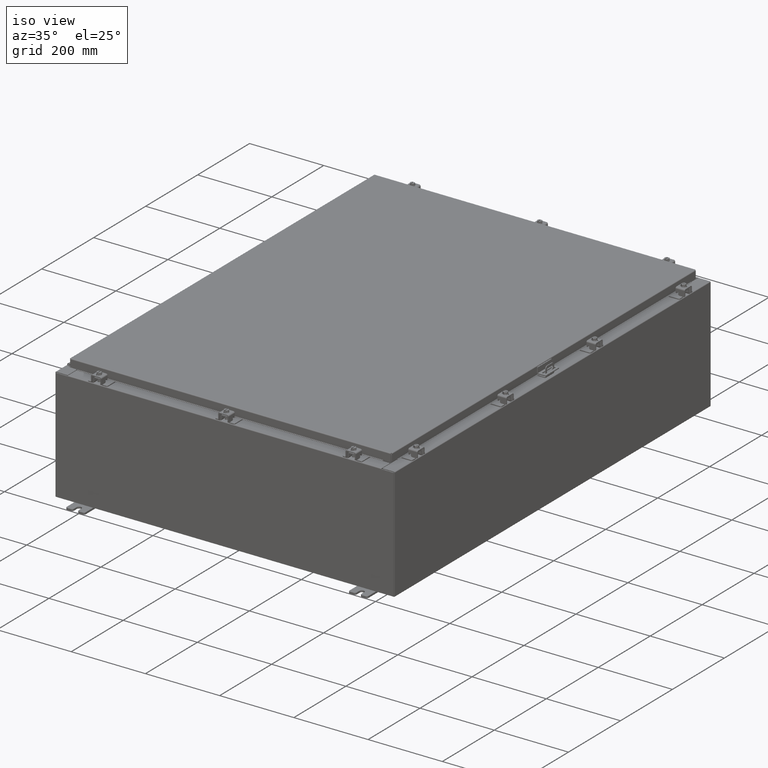
[diagram: clean part render]
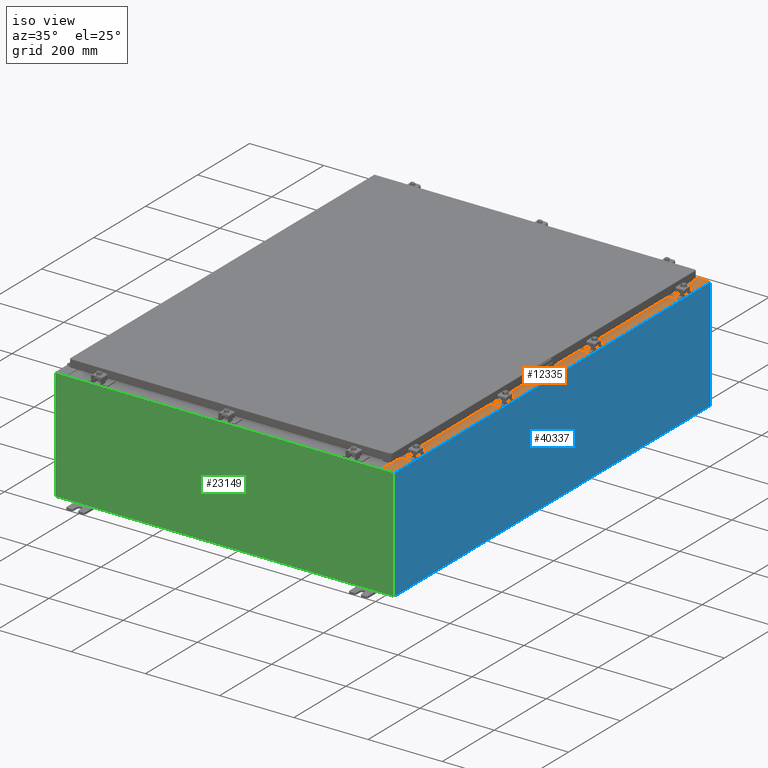
[diagram: same view with three faces highlighted in distinct colors, each labeled with its STEP entity id]
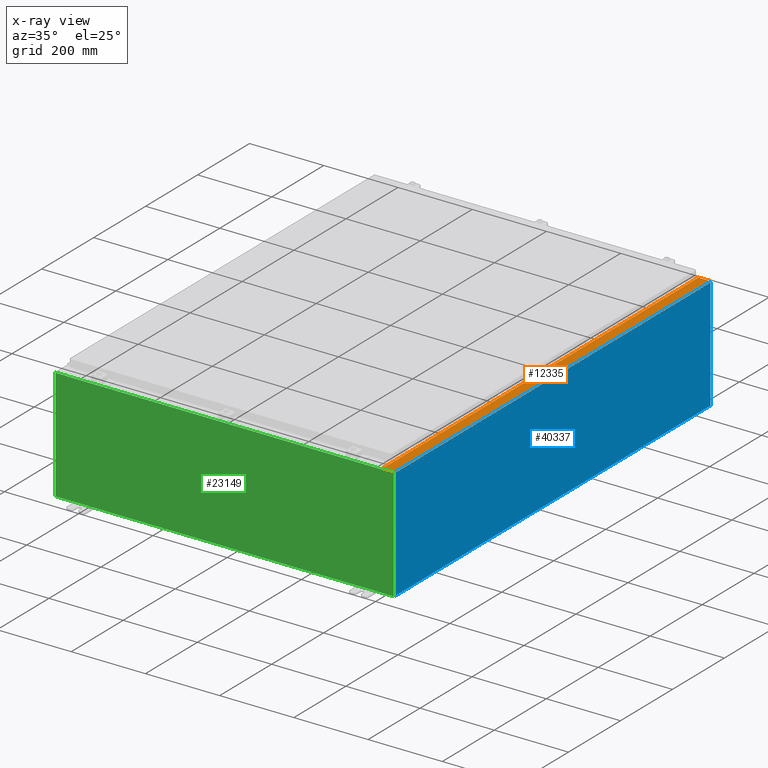
[diagram: x-ray of the same camera — body ghosted, the three highlighted faces saturated]
A machine part, iso view with three faces highlighted in distinct colors.
The next image is the same camera in x-ray (body ghosted, the three faces saturated) — at least one of them is partly hidden behind the body in this view.
Their STEP definitions:

[orange] entity #12335 — the highlighted planar face has unit normal (-0, 0, -1).
#681 = ORIENTED_EDGE ( 'NONE', *, *, #7957, .F. ) ;
#768 = EDGE_CURVE ( 'NONE', #19387, #36393, #44924, .T. ) ;
#1273 = CARTESIAN_POINT ( 'NONE',  ( 16.75005000000003700, -22.59374999999998900, 11.92530000000000900 ) ) ;
#2378 = DIRECTION ( 'NONE',  ( 1.000000000000000000, 0.0000000000000000000, -7.132762385546384700E-015 ) ) ;
#2498 = DIRECTION ( 'NONE',  ( 1.000000000000000000, 0.0000000000000000000, 4.340572780400098900E-014 ) ) ;
#2682 = AXIS2_PLACEMENT_3D ( 'NONE', #3676, #7745, #37019 ) ;
#2827 = EDGE_CURVE ( 'NONE', #10588, #2937, #45321, .T. ) ;
#2937 = VERTEX_POINT ( 'NONE', #34646 ) ;
#3048 = VECTOR ( 'NONE', #2498, 39.37007874015748100 ) ;
#3154 = CARTESIAN_POINT ( 'NONE',  ( 16.75005000000003700, 22.61242499999997000, 11.92530000000001200 ) ) ;
#3242 = VECTOR ( 'NONE', #7252, 39.37007874015748100 ) ;
#3535 = EDGE_CURVE ( 'NONE', #53874, #19387, #4818, .T. ) ;
#3676 = CARTESIAN_POINT ( 'NONE',  ( 8.532114493236880700E-014, 0.0000000000000000000, 11.92530000000013000 ) ) ;
#4576 = CARTESIAN_POINT ( 'NONE',  ( 16.75005000000003700, 22.59374999999997200, 11.92530000000000900 ) ) ;
#4818 = CIRCLE ( 'NONE', #44049, 0.01867499999999949400 ) ;
#5230 = CARTESIAN_POINT ( 'NONE',  ( 16.71270000000003700, -22.59374999999998900, 11.92530000000001200 ) ) ;
#5369 = CARTESIAN_POINT ( 'NONE',  ( 16.69970000000003900, -22.63109999999998600, 11.92530000000000900 ) ) ;
#6599 = CARTESIAN_POINT ( 'NONE',  ( 16.69970000000003900, -22.63109999999998600, 11.92530000000000900 ) ) ;
#7117 = CIRCLE ( 'NONE', #32744, 0.01867499999999949400 ) ;
#7176 = DIRECTION ( 'NONE',  ( -1.000000000000000000, 0.0000000000000000000, 7.132762385546384700E-015 ) ) ;
#7238 = DIRECTION ( 'NONE',  ( 1.000000000000000000, 0.0000000000000000000, 0.0000000000000000000 ) ) ;
#7252 = DIRECTION ( 'NONE',  ( -1.000000000000000000, 0.0000000000000000000, 0.0000000000000000000 ) ) ;
#7648 = VERTEX_POINT ( 'NONE', #5369 ) ;
#7660 = EDGE_CURVE ( 'NONE', #10588, #15040, #29741, .T. ) ;
#7745 = DIRECTION ( 'NONE',  ( -7.132762385546384700E-015, 0.0000000000000000000, -1.000000000000000000 ) ) ;
#7957 = EDGE_CURVE ( 'NONE', #7648, #53874, #13960, .T. ) ;
#8447 = CARTESIAN_POINT ( 'NONE',  ( 17.91230000000003700, 23.92529999999998600, 11.92530000000000400 ) ) ;
#10185 = ORIENTED_EDGE ( 'NONE', *, *, #50965, .T. ) ;
#10588 = VERTEX_POINT ( 'NONE', #8447 ) ;
#10981 = VECTOR ( 'NONE', #44513, 39.37007874015748100 ) ;
#11432 = ORIENTED_EDGE ( 'NONE', *, *, #12121, .F. ) ;
#12121 = EDGE_CURVE ( 'NONE', #36393, #41365, #46237, .T. ) ;
#12335 = ADVANCED_FACE ( 'NONE', ( #22038 ), #41014, .F. ) ;
#12544 = LINE ( 'NONE', #38284, #21123 ) ;
#12665 = CARTESIAN_POINT ( 'NONE',  ( 16.69970000000003900, 0.0000000000000000000, 11.92530000000000900 ) ) ;
#13960 = LINE ( 'NONE', #6599, #3048 ) ;
#14648 = CARTESIAN_POINT ( 'NONE',  ( 16.71270000000003700, -22.59374999999998900, 11.92530000000001200 ) ) ;
#14981 = ORIENTED_EDGE ( 'NONE', *, *, #22937, .T. ) ;
#15040 = VERTEX_POINT ( 'NONE', #33416 ) ;
#17167 = ORIENTED_EDGE ( 'NONE', *, *, #7660, .T. ) ;
#17382 = DIRECTION ( 'NONE',  ( 0.0000000000000000000, -1.000000000000000000, 0.0000000000000000000 ) ) ;
#17610 = DIRECTION ( 'NONE',  ( -0.0000000000000000000, -1.000000000000000000, -0.0000000000000000000 ) ) ;
#18714 = DIRECTION ( 'NONE',  ( -0.0000000000000000000, 1.000000000000000000, -0.0000000000000000000 ) ) ;
#19094 = DIRECTION ( 'NONE',  ( -1.000000000000000000, 0.0000000000000000000, -4.340572780400098900E-014 ) ) ;
#19387 = VERTEX_POINT ( 'NONE', #1273 ) ;
#20677 = VECTOR ( 'NONE', #41990, 39.37007874015748100 ) ;
#21123 = VECTOR ( 'NONE', #17382, 39.37007874015748100 ) ;
#21296 = ORIENTED_EDGE ( 'NONE', *, *, #2827, .F. ) ;
#21365 = CARTESIAN_POINT ( 'NONE',  ( 8.532114493236880700E-014, 23.92529999999998600, 11.92530000000013000 ) ) ;
#21407 = VECTOR ( 'NONE', #18714, 39.37007874015748100 ) ;
#21672 = ORIENTED_EDGE ( 'NONE', *, *, #768, .F. ) ;
#21780 = EDGE_CURVE ( 'NONE', #41365, #42031, #44392, .T. ) ;
#22038 = FACE_OUTER_BOUND ( 'NONE', #24150, .T. ) ;
#22342 = EDGE_CURVE ( 'NONE', #42031, #38746, #7117, .T. ) ;
#22682 = VECTOR ( 'NONE', #2378, 39.37007874015748100 ) ;
#22921 = CARTESIAN_POINT ( 'NONE',  ( 17.91230000000003700, -23.92529999999998900, 11.92530000000000400 ) ) ;
#22937 = EDGE_CURVE ( 'NONE', #50401, #2937, #44914, .T. ) ;
#23107 = VECTOR ( 'NONE', #17610, 39.37007874015748100 ) ;
#24150 = EDGE_LOOP ( 'NONE', ( #681, #10185, #14981, #21296, #17167, #43777, #33671, #38141, #42499, #11432, #21672, #47231 ) ) ;
#27495 = CARTESIAN_POINT ( 'NONE',  ( 16.75005000000003700, 22.63109999999996800, 11.92530000000001200 ) ) ;
#29380 = EDGE_CURVE ( 'NONE', #38746, #37220, #53820, .T. ) ;
#29741 = LINE ( 'NONE', #21365, #40868 ) ;
#31415 = CARTESIAN_POINT ( 'NONE',  ( 16.69970000000003900, 22.63109999999996800, 11.92530000000000900 ) ) ;
#32305 = DIRECTION ( 'NONE',  ( 7.132762385546384700E-015, 0.0000000000000000000, 1.000000000000000000 ) ) ;
#32744 = AXIS2_PLACEMENT_3D ( 'NONE', #3154, #32305, #7238 ) ;
#33416 = CARTESIAN_POINT ( 'NONE',  ( 16.69970000000003900, 23.92529999999998200, 11.92530000000000900 ) ) ;
#33422 = CARTESIAN_POINT ( 'NONE',  ( 16.69970000000003900, -23.92529999999998900, 11.92530000000000900 ) ) ;
#33671 = ORIENTED_EDGE ( 'NONE', *, *, #29380, .F. ) ;
#34646 = CARTESIAN_POINT ( 'NONE',  ( 17.91230000000003700, -23.92529999999998900, 11.92530000000000400 ) ) ;
#36393 = VERTEX_POINT ( 'NONE', #5230 ) ;
#36886 = EDGE_CURVE ( 'NONE', #15040, #37220, #52721, .T. ) ;
#37019 = DIRECTION ( 'NONE',  ( -1.000000000000000000, 0.0000000000000000000, 7.132762385546384700E-015 ) ) ;
#37220 = VERTEX_POINT ( 'NONE', #31415 ) ;
#37644 = CARTESIAN_POINT ( 'NONE',  ( 16.71270000000003700, 22.59374999999997200, 11.92530000000001200 ) ) ;
#37895 = DIRECTION ( 'NONE',  ( 1.000000000000000000, 0.0000000000000000000, 0.0000000000000000000 ) ) ;
#38086 = CARTESIAN_POINT ( 'NONE',  ( 16.75005000000003700, -22.61242499999998800, 11.92530000000001200 ) ) ;
#38141 = ORIENTED_EDGE ( 'NONE', *, *, #22342, .F. ) ;
#38284 = CARTESIAN_POINT ( 'NONE',  ( 16.69970000000003900, 0.0000000000000000000, 11.92530000000000900 ) ) ;
#38746 = VERTEX_POINT ( 'NONE', #53825 ) ;
#40339 = CARTESIAN_POINT ( 'NONE',  ( 16.71270000000003700, 22.59374999999997200, 11.92530000000001200 ) ) ;
#40868 = VECTOR ( 'NONE', #7176, 39.37007874015748100 ) ;
#41014 = PLANE ( 'NONE',  #2682 ) ;
#41188 = CARTESIAN_POINT ( 'NONE',  ( 16.75005000000003700, -22.63109999999998600, 11.92530000000000900 ) ) ;
#41365 = VERTEX_POINT ( 'NONE', #37644 ) ;
#41907 = DIRECTION ( 'NONE',  ( 7.132762385546384700E-015, 0.0000000000000000000, 1.000000000000000000 ) ) ;
#41990 = DIRECTION ( 'NONE',  ( 0.0000000000000000000, -1.000000000000000000, 0.0000000000000000000 ) ) ;
#42031 = VERTEX_POINT ( 'NONE', #4576 ) ;
#42499 = ORIENTED_EDGE ( 'NONE', *, *, #21780, .F. ) ;
#42737 = VECTOR ( 'NONE', #19094, 39.37007874015748100 ) ;
#43777 = ORIENTED_EDGE ( 'NONE', *, *, #36886, .T. ) ;
#44049 = AXIS2_PLACEMENT_3D ( 'NONE', #38086, #41907, #37895 ) ;
#44392 = LINE ( 'NONE', #40339, #10981 ) ;
#44513 = DIRECTION ( 'NONE',  ( 1.000000000000000000, 0.0000000000000000000, 0.0000000000000000000 ) ) ;
#44914 = LINE ( 'NONE', #52626, #22682 ) ;
#44924 = LINE ( 'NONE', #51620, #3242 ) ;
#45321 = LINE ( 'NONE', #22921, #23107 ) ;
#46237 = LINE ( 'NONE', #14648, #21407 ) ;
#47231 = ORIENTED_EDGE ( 'NONE', *, *, #3535, .F. ) ;
#50401 = VERTEX_POINT ( 'NONE', #33422 ) ;
#50965 = EDGE_CURVE ( 'NONE', #7648, #50401, #12544, .T. ) ;
#51620 = CARTESIAN_POINT ( 'NONE',  ( 16.75005000000003700, -22.59374999999998900, 11.92530000000001200 ) ) ;
#52626 = CARTESIAN_POINT ( 'NONE',  ( 8.532114493236880700E-014, -23.92529999999998900, 11.92530000000013000 ) ) ;
#52721 = LINE ( 'NONE', #12665, #20677 ) ;
#53820 = LINE ( 'NONE', #27495, #42737 ) ;
#53825 = CARTESIAN_POINT ( 'NONE',  ( 16.75005000000003700, 22.63109999999996800, 11.92530000000000900 ) ) ;
#53874 = VERTEX_POINT ( 'NONE', #41188 ) ;

[blue] entity #40337 — the highlighted planar face has unit normal (-1, 0, 0).
#1287 = LINE ( 'NONE', #51251, #44277 ) ;
#2486 = ORIENTED_EDGE ( 'NONE', *, *, #48757, .T. ) ;
#3420 = VECTOR ( 'NONE', #30080, 39.37007874015748100 ) ;
#4286 = DIRECTION ( 'NONE',  ( -1.590339826456887700E-031, -1.000000000000000000, -4.567295697298285000E-017 ) ) ;
#5449 = PLANE ( 'NONE',  #35116 ) ;
#5820 = EDGE_CURVE ( 'NONE', #42083, #38747, #51583, .T. ) ;
#6518 = FACE_OUTER_BOUND ( 'NONE', #53585, .T. ) ;
#7224 = CARTESIAN_POINT ( 'NONE',  ( 17.99999999999999600, -23.92529999999998900, 0.01299999999999984700 ) ) ;
#9123 = VERTEX_POINT ( 'NONE', #39133 ) ;
#10160 = DIRECTION ( 'NONE',  ( -3.482016343714355500E-015, 0.0000000000000000000, -1.000000000000000000 ) ) ;
#14487 = VECTOR ( 'NONE', #10160, 39.37007874015748100 ) ;
#14696 = EDGE_CURVE ( 'NONE', #9123, #38747, #25649, .T. ) ;
#15645 = LINE ( 'NONE', #50853, #3420 ) ;
#18997 = CARTESIAN_POINT ( 'NONE',  ( 18.00000000000003900, 23.92529999999998600, 11.83760000000000200 ) ) ;
#22148 = DIRECTION ( 'NONE',  ( 3.482016343714355100E-015, 0.0000000000000000000, 1.000000000000000000 ) ) ;
#25649 = LINE ( 'NONE', #26798, #14487 ) ;
#26235 = DIRECTION ( 'NONE',  ( 3.482016343714355500E-015, 0.0000000000000000000, 1.000000000000000000 ) ) ;
#26798 = CARTESIAN_POINT ( 'NONE',  ( 17.99999999999999600, -23.92529999999998900, -6.293710784286996200E-014 ) ) ;
#28484 = ORIENTED_EDGE ( 'NONE', *, *, #14696, .T. ) ;
#28785 = CARTESIAN_POINT ( 'NONE',  ( 17.99999999999999600, -23.92529999999998900, 0.01299999999999897800 ) ) ;
#29349 = VECTOR ( 'NONE', #4286, 39.37007874015748100 ) ;
#30080 = DIRECTION ( 'NONE',  ( -0.0000000000000000000, -1.000000000000000000, -0.0000000000000000000 ) ) ;
#35116 = AXIS2_PLACEMENT_3D ( 'NONE', #38833, #47191, #22148 ) ;
#38747 = VERTEX_POINT ( 'NONE', #28785 ) ;
#38833 = CARTESIAN_POINT ( 'NONE',  ( 17.99999999999999600, 0.0000000000000000000, -6.293710784286996200E-014 ) ) ;
#38905 = EDGE_CURVE ( 'NONE', #46503, #9123, #15645, .T. ) ;
#39133 = CARTESIAN_POINT ( 'NONE',  ( 18.00000000000003900, -23.92529999999998900, 11.83760000000000200 ) ) ;
#40337 = ADVANCED_FACE ( 'NONE', ( #6518 ), #5449, .F. ) ;
#42083 = VERTEX_POINT ( 'NONE', #50640 ) ;
#44277 = VECTOR ( 'NONE', #26235, 39.37007874015748100 ) ;
#46503 = VERTEX_POINT ( 'NONE', #18997 ) ;
#47191 = DIRECTION ( 'NONE',  ( -1.000000000000000000, 0.0000000000000000000, 3.482016343714355100E-015 ) ) ;
#48757 = EDGE_CURVE ( 'NONE', #42083, #46503, #1287, .T. ) ;
#50206 = ORIENTED_EDGE ( 'NONE', *, *, #38905, .T. ) ;
#50581 = ORIENTED_EDGE ( 'NONE', *, *, #5820, .F. ) ;
#50640 = CARTESIAN_POINT ( 'NONE',  ( 17.99999999999999600, 23.92529999999998600, 0.01300000000000203200 ) ) ;
#50853 = CARTESIAN_POINT ( 'NONE',  ( 18.00000000000003900, 23.92529999999998900, 11.83760000000000200 ) ) ;
#51251 = CARTESIAN_POINT ( 'NONE',  ( 17.99999999999999600, 23.92529999999998900, -6.293710784286996200E-014 ) ) ;
#51583 = LINE ( 'NONE', #7224, #29349 ) ;
#53585 = EDGE_LOOP ( 'NONE', ( #50206, #28484, #50581, #2486 ) ) ;

[green] entity #23149 — the highlighted planar face has unit normal (-0, 1, -0).
#19 = CARTESIAN_POINT ( 'NONE',  ( 16.63720000000000400, 0.0000000000000000000, 5.874949999999999200 ) ) ;
#184 = CARTESIAN_POINT ( 'NONE',  ( 16.67455000000000700, 0.0000000000000000000, 5.925300000000000000 ) ) ;
#1390 = DIRECTION ( 'NONE',  ( -0.0000000000000000000, 1.000000000000000000, -0.0000000000000000000 ) ) ;
#1922 = ORIENTED_EDGE ( 'NONE', *, *, #18359, .T. ) ;
#2252 = CARTESIAN_POINT ( 'NONE',  ( -17.92529999999999600, 0.0000000000000000000, 5.925299999999999100 ) ) ;
#3180 = CARTESIAN_POINT ( 'NONE',  ( -16.63720000000000000, 3.756290991288361700E-016, 5.912299999999999200 ) ) ;
#3182 = VECTOR ( 'NONE', #14636, 39.37007874015748100 ) ;
#3197 = ORIENTED_EDGE ( 'NONE', *, *, #41418, .F. ) ;
#3226 = EDGE_LOOP ( 'NONE', ( #6833, #3197, #47145, #8391, #17352, #39538, #22543, #31391, #41320, #36448, #3713, #1922 ) ) ;
#3713 = ORIENTED_EDGE ( 'NONE', *, *, #28431, .T. ) ;
#4812 = DIRECTION ( 'NONE',  ( -0.0000000000000000000, 1.000000000000000000, -0.0000000000000000000 ) ) ;
#5061 = EDGE_CURVE ( 'NONE', #31775, #53614, #36690, .T. ) ;
#5706 = CARTESIAN_POINT ( 'NONE',  ( -17.92529999999999600, 0.0000000000000000000, -5.925300000000000000 ) ) ;
#6796 = CARTESIAN_POINT ( 'NONE',  ( 16.63720000000000400, 0.0000000000000000000, 0.0000000000000000000 ) ) ;
#6833 = ORIENTED_EDGE ( 'NONE', *, *, #49565, .F. ) ;
#7228 = DIRECTION ( 'NONE',  ( -8.681145560799821800E-014, 0.0000000000000000000, -1.000000000000000000 ) ) ;
#7578 = LINE ( 'NONE', #36074, #39617 ) ;
#8207 = CARTESIAN_POINT ( 'NONE',  ( 0.0000000000000000000, 0.0000000000000000000, 0.0000000000000000000 ) ) ;
#8391 = ORIENTED_EDGE ( 'NONE', *, *, #18211, .T. ) ;
#8667 = VECTOR ( 'NONE', #24405, 39.37007874015748100 ) ;
#8924 = VERTEX_POINT ( 'NONE', #184 ) ;
#9575 = LINE ( 'NONE', #19770, #52730 ) ;
#10290 = VERTEX_POINT ( 'NONE', #44329 ) ;
#11135 = VERTEX_POINT ( 'NONE', #19 ) ;
#11726 = CARTESIAN_POINT ( 'NONE',  ( -16.63720000000000000, -0.0000000000000000000, 0.0000000000000000000 ) ) ;
#12128 = CARTESIAN_POINT ( 'NONE',  ( -16.67455000000000000, 0.0000000000000000000, 5.925299999999999100 ) ) ;
#14636 = DIRECTION ( 'NONE',  ( 1.000000000000000000, 0.0000000000000000000, 3.048036009064577000E-017 ) ) ;
#16416 = LINE ( 'NONE', #16941, #48496 ) ;
#16941 = CARTESIAN_POINT ( 'NONE',  ( 17.92530000000000400, 0.0000000000000000000, 5.925300000000000000 ) ) ;
#17352 = ORIENTED_EDGE ( 'NONE', *, *, #47168, .F. ) ;
#17405 = DIRECTION ( 'NONE',  ( -0.0000000000000000000, -0.0000000000000000000, 1.000000000000000000 ) ) ;
#18211 = EDGE_CURVE ( 'NONE', #47811, #34196, #33172, .T. ) ;
#18359 = EDGE_CURVE ( 'NONE', #53926, #21304, #26544, .T. ) ;
#18974 = DIRECTION ( 'NONE',  ( 1.000000000000000000, 0.0000000000000000000, 3.048036009064577000E-017 ) ) ;
#19020 = LINE ( 'NONE', #11726, #8667 ) ;
#19536 = DIRECTION ( 'NONE',  ( 0.0000000000000000000, 0.0000000000000000000, 1.000000000000000000 ) ) ;
#19679 = EDGE_CURVE ( 'NONE', #47811, #10290, #19020, .T. ) ;
#19770 = CARTESIAN_POINT ( 'NONE',  ( 16.67454999999949500, -0.0000000000000000000, -1.447541957108302900E-012 ) ) ;
#19780 = CARTESIAN_POINT ( 'NONE',  ( 16.67455000000000400, 0.0000000000000000000, 5.874949999999999200 ) ) ;
#20209 = VERTEX_POINT ( 'NONE', #19780 ) ;
#20210 = VECTOR ( 'NONE', #36013, 39.37007874015748100 ) ;
#21304 = VERTEX_POINT ( 'NONE', #12128 ) ;
#21705 = CIRCLE ( 'NONE', #42093, 0.01867499999999949400 ) ;
#22543 = ORIENTED_EDGE ( 'NONE', *, *, #26744, .F. ) ;
#23149 = ADVANCED_FACE ( 'NONE', ( #34500 ), #45820, .F. ) ;
#23617 = CARTESIAN_POINT ( 'NONE',  ( -17.92529999999999600, 0.0000000000000000000, -5.925300000000000000 ) ) ;
#24190 = VECTOR ( 'NONE', #38388, 39.37007874015748100 ) ;
#24405 = DIRECTION ( 'NONE',  ( 0.0000000000000000000, 0.0000000000000000000, -1.000000000000000000 ) ) ;
#25001 = DIRECTION ( 'NONE',  ( 0.0000000000000000000, -0.0000000000000000000, -1.000000000000000000 ) ) ;
#25853 = CARTESIAN_POINT ( 'NONE',  ( -16.67455000000000000, 0.0000000000000000000, 5.874949999999999200 ) ) ;
#26210 = CARTESIAN_POINT ( 'NONE',  ( -16.63720000000000000, 3.756290991288361700E-016, 5.912299999999999200 ) ) ;
#26231 = CARTESIAN_POINT ( 'NONE',  ( 16.65587500000000500, 0.0000000000000000000, 5.874949999999999200 ) ) ;
#26544 = LINE ( 'NONE', #2252, #3182 ) ;
#26744 = EDGE_CURVE ( 'NONE', #8924, #20209, #9575, .T. ) ;
#27329 = EDGE_CURVE ( 'NONE', #8924, #40604, #42889, .T. ) ;
#28089 = AXIS2_PLACEMENT_3D ( 'NONE', #8207, #50016, #25001 ) ;
#28431 = EDGE_CURVE ( 'NONE', #53614, #53926, #48078, .T. ) ;
#29743 = CARTESIAN_POINT ( 'NONE',  ( -16.65587499999999800, 0.0000000000000000000, 5.874949999999999200 ) ) ;
#30485 = DIRECTION ( 'NONE',  ( 0.0000000000000000000, 0.0000000000000000000, -1.000000000000000000 ) ) ;
#31391 = ORIENTED_EDGE ( 'NONE', *, *, #27329, .T. ) ;
#31775 = VERTEX_POINT ( 'NONE', #47451 ) ;
#32264 = CARTESIAN_POINT ( 'NONE',  ( 16.63720000000000400, 0.0000000000000000000, 5.912299999999999200 ) ) ;
#32659 = EDGE_CURVE ( 'NONE', #40604, #31775, #16416, .T. ) ;
#33172 = LINE ( 'NONE', #26210, #34494 ) ;
#33988 = DIRECTION ( 'NONE',  ( 0.0000000000000000000, 0.0000000000000000000, -1.000000000000000000 ) ) ;
#34196 = VERTEX_POINT ( 'NONE', #32264 ) ;
#34494 = VECTOR ( 'NONE', #51230, 39.37007874015748100 ) ;
#34500 = FACE_OUTER_BOUND ( 'NONE', #3226, .T. ) ;
#35688 = CARTESIAN_POINT ( 'NONE',  ( -17.92529999999999600, 0.0000000000000000000, 5.925299999999999100 ) ) ;
#36013 = DIRECTION ( 'NONE',  ( 0.0000000000000000000, 0.0000000000000000000, 1.000000000000000000 ) ) ;
#36074 = CARTESIAN_POINT ( 'NONE',  ( -16.67455000000000000, -0.0000000000000000000, 0.0000000000000000000 ) ) ;
#36448 = ORIENTED_EDGE ( 'NONE', *, *, #5061, .T. ) ;
#36690 = LINE ( 'NONE', #23617, #24190 ) ;
#37205 = CARTESIAN_POINT ( 'NONE',  ( -17.92529999999999600, 0.0000000000000000000, 5.925299999999999100 ) ) ;
#37377 = VERTEX_POINT ( 'NONE', #25853 ) ;
#38388 = DIRECTION ( 'NONE',  ( -1.000000000000000000, -0.0000000000000000000, -0.0000000000000000000 ) ) ;
#39538 = ORIENTED_EDGE ( 'NONE', *, *, #51724, .F. ) ;
#39617 = VECTOR ( 'NONE', #19536, 39.37007874015748100 ) ;
#40604 = VERTEX_POINT ( 'NONE', #52992 ) ;
#41152 = LINE ( 'NONE', #6796, #20210 ) ;
#41320 = ORIENTED_EDGE ( 'NONE', *, *, #32659, .T. ) ;
#41418 = EDGE_CURVE ( 'NONE', #10290, #37377, #45521, .T. ) ;
#42093 = AXIS2_PLACEMENT_3D ( 'NONE', #26231, #1390, #30485 ) ;
#42889 = LINE ( 'NONE', #35688, #52662 ) ;
#44329 = CARTESIAN_POINT ( 'NONE',  ( -16.63720000000000000, -0.0000000000000000000, 5.874949999999999200 ) ) ;
#45521 = CIRCLE ( 'NONE', #51888, 0.01867499999999949400 ) ;
#45820 = PLANE ( 'NONE',  #28089 ) ;
#46227 = DIRECTION ( 'NONE',  ( 0.0000000000000000000, 0.0000000000000000000, -1.000000000000000000 ) ) ;
#46761 = VECTOR ( 'NONE', #17405, 39.37007874015748100 ) ;
#47145 = ORIENTED_EDGE ( 'NONE', *, *, #19679, .F. ) ;
#47168 = EDGE_CURVE ( 'NONE', #11135, #34196, #41152, .T. ) ;
#47451 = CARTESIAN_POINT ( 'NONE',  ( 17.92530000000000400, 0.0000000000000000000, -5.925300000000000000 ) ) ;
#47811 = VERTEX_POINT ( 'NONE', #3180 ) ;
#48078 = LINE ( 'NONE', #50656, #46761 ) ;
#48496 = VECTOR ( 'NONE', #46227, 39.37007874015748100 ) ;
#49565 = EDGE_CURVE ( 'NONE', #37377, #21304, #7578, .T. ) ;
#50016 = DIRECTION ( 'NONE',  ( 0.0000000000000000000, -1.000000000000000000, 0.0000000000000000000 ) ) ;
#50656 = CARTESIAN_POINT ( 'NONE',  ( -17.92529999999999600, 0.0000000000000000000, 5.925299999999999100 ) ) ;
#51230 = DIRECTION ( 'NONE',  ( 1.000000000000000000, 0.0000000000000000000, 0.0000000000000000000 ) ) ;
#51724 = EDGE_CURVE ( 'NONE', #20209, #11135, #21705, .T. ) ;
#51888 = AXIS2_PLACEMENT_3D ( 'NONE', #29743, #4812, #33988 ) ;
#52662 = VECTOR ( 'NONE', #18974, 39.37007874015748100 ) ;
#52730 = VECTOR ( 'NONE', #7228, 39.37007874015748100 ) ;
#52992 = CARTESIAN_POINT ( 'NONE',  ( 17.92530000000000400, 0.0000000000000000000, 5.925300000000000000 ) ) ;
#53614 = VERTEX_POINT ( 'NONE', #5706 ) ;
#53926 = VERTEX_POINT ( 'NONE', #37205 ) ;